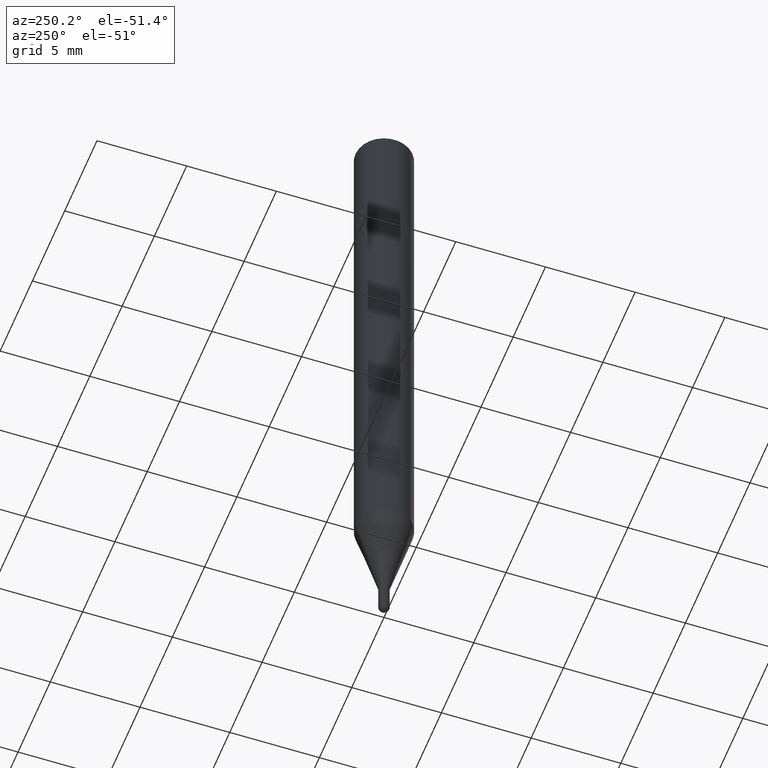
[diagram: clean part render]
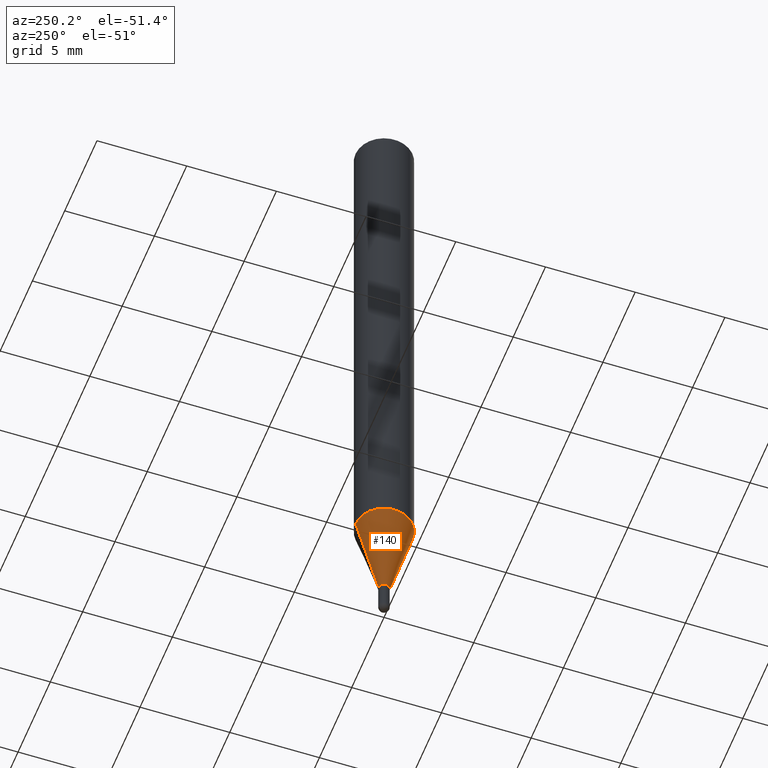
[diagram: same view with one face highlighted and labeled with its STEP entity id]
A machine part, auxiliary view. The second image highlights one B-rep face of the part: STEP entity #140.
In plain terms, the highlighted conical surface has half-angle 15 deg.
Its self-contained STEP definition (entity closure, byte-faithful):
#20 = EDGE_CURVE ( 'NONE', #207, #258, #253, .T. ) ;
#27 = CONICAL_SURFACE ( 'NONE', #145, 0.01199999999999992566, 0.2617993877991575125 ) ;
#36 = DIRECTION ( 'NONE',  ( 1.839019923739649619E-15, 0.2588190451025318972, 0.9659258262890650926 ) ) ;
#38 = DIRECTION ( 'NONE',  ( -6.982962677686265922E-15, -1.000000000000000000, 0.000000000000000000 ) ) ;
#46 = VERTEX_POINT ( 'NONE', #309 ) ;
#52 = CARTESIAN_POINT ( 'NONE',  ( -8.379555213219975405E-17, -0.01200000000000491125, -1.428000000000000158 ) ) ;
#57 = DIRECTION ( 'NONE',  ( -6.982962677686265922E-15, -1.000000000000000000, 0.000000000000000000 ) ) ;
#64 = ORIENTED_EDGE ( 'NONE', *, *, #482, .T. ) ;
#67 = CIRCLE ( 'NONE', #496, 0.06250000000000000000 ) ;
#120 = DIRECTION ( 'NONE',  ( -2.445468599825169014E-29, 3.491481634362364311E-15, 1.000000000000000000 ) ) ;
#140 = ADVANCED_FACE ( 'NONE', ( #428 ), #27, .T. ) ;
#145 = AXIS2_PLACEMENT_3D ( 'NONE', #155, #120, #38 ) ;
#147 = DIRECTION ( 'NONE',  ( -2.445468599825169014E-29, 3.491481634362364311E-15, 1.000000000000000000 ) ) ;
#154 = CARTESIAN_POINT ( 'NONE',  ( -4.364351673553613969E-16, -0.06250000000000434375, -1.239531434217777450 ) ) ;
#155 = CARTESIAN_POINT ( 'NONE',  ( 3.492129160550341330E-29, -4.985835773869456367E-15, -1.428000000000000158 ) ) ;
#156 = CARTESIAN_POINT ( 'NONE',  ( -8.379555213219975405E-17, -0.01200000000000491125, -1.428000000000000158 ) ) ;
#207 = VERTEX_POINT ( 'NONE', #459 ) ;
#221 = VECTOR ( 'NONE', #394, 39.37007874015748854 ) ;
#253 = CIRCLE ( 'NONE', #262, 0.01199999999999992566 ) ;
#258 = VERTEX_POINT ( 'NONE', #52 ) ;
#261 = ORIENTED_EDGE ( 'NONE', *, *, #346, .F. ) ;
#262 = AXIS2_PLACEMENT_3D ( 'NONE', #381, #147, #57 ) ;
#264 = EDGE_LOOP ( 'NONE', ( #261, #419, #64, #493 ) ) ;
#282 = LINE ( 'NONE', #156, #221 ) ;
#283 = LINE ( 'NONE', #483, #421 ) ;
#309 = CARTESIAN_POINT ( 'NONE',  ( 4.440892098500927901E-16, 0.06249999999999567013, -1.239531434217777894 ) ) ;
#342 = VERTEX_POINT ( 'NONE', #154 ) ;
#346 = EDGE_CURVE ( 'NONE', #207, #46, #283, .T. ) ;
#354 = DIRECTION ( 'NONE',  ( -2.445468599825169014E-29, 3.491481634362364311E-15, 1.000000000000000000 ) ) ;
#381 = CARTESIAN_POINT ( 'NONE',  ( 3.492129160550341330E-29, -4.985835773869456367E-15, -1.428000000000000158 ) ) ;
#388 = CARTESIAN_POINT ( 'NONE',  ( 3.031235200875832251E-29, -4.327801237786212158E-15, -1.239531434217777672 ) ) ;
#394 = DIRECTION ( 'NONE',  ( -1.807323732225379049E-15, -0.2588190451025252359, 0.9659258262890670910 ) ) ;
#397 = DIRECTION ( 'NONE',  ( -6.982962677686265922E-15, -1.000000000000000000, 4.370956789862821150E-15 ) ) ;
#419 = ORIENTED_EDGE ( 'NONE', *, *, #20, .T. ) ;
#421 = VECTOR ( 'NONE', #36, 39.37007874015748854 ) ;
#428 = FACE_OUTER_BOUND ( 'NONE', #264, .T. ) ;
#458 = EDGE_CURVE ( 'NONE', #46, #342, #67, .T. ) ;
#459 = CARTESIAN_POINT ( 'NONE',  ( 2.646771690706697990E-16, 0.01199999999999494006, -1.428000000000000158 ) ) ;
#482 = EDGE_CURVE ( 'NONE', #258, #342, #282, .T. ) ;
#483 = CARTESIAN_POINT ( 'NONE',  ( 8.526512829124640116E-17, 0.01199999999999494006, -1.428000000000000158 ) ) ;
#493 = ORIENTED_EDGE ( 'NONE', *, *, #458, .F. ) ;
#496 = AXIS2_PLACEMENT_3D ( 'NONE', #388, #354, #397 ) ;